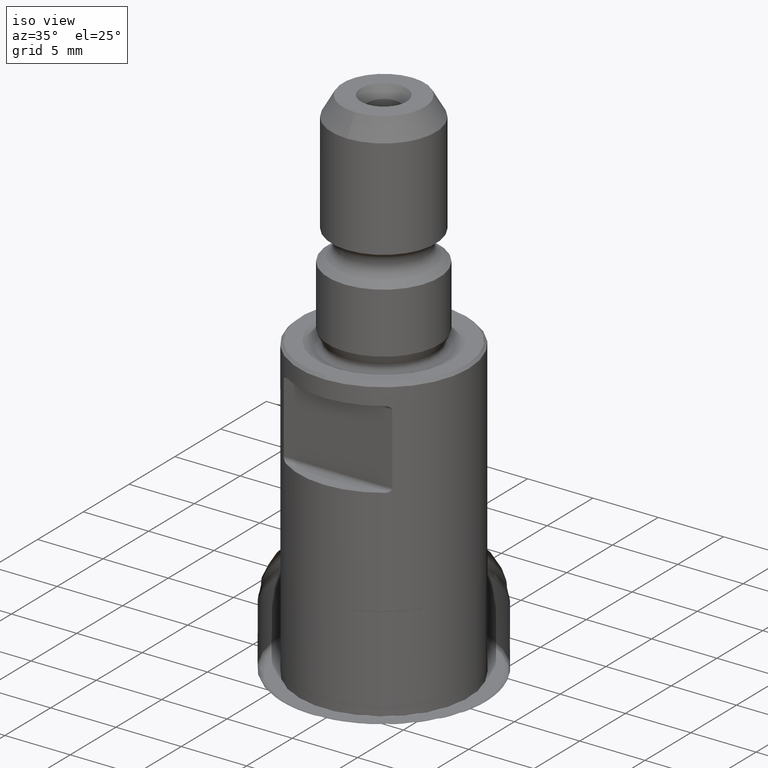
[diagram: clean part render]
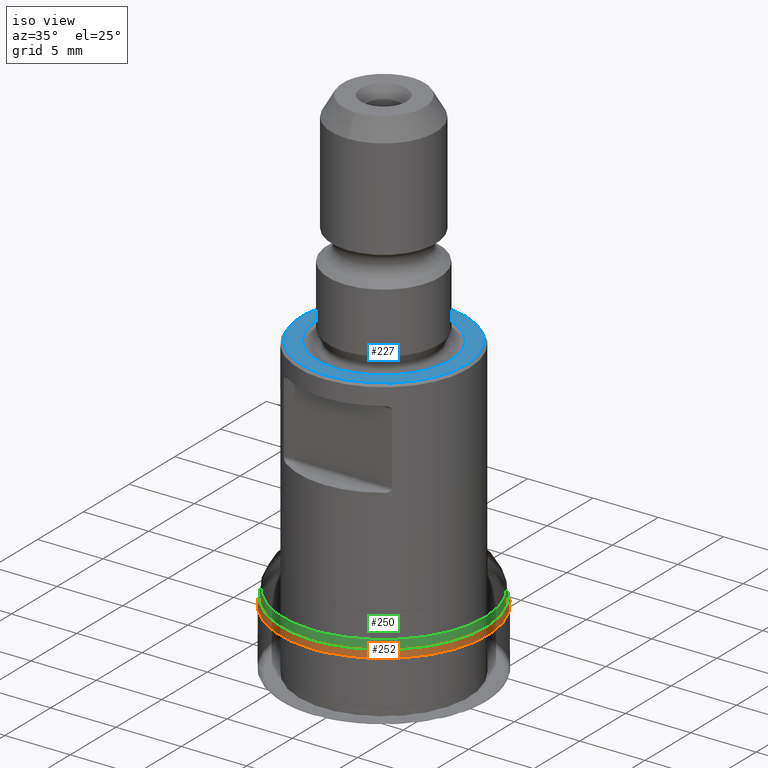
[diagram: same view with three faces highlighted in distinct colors, each labeled with its STEP entity id]
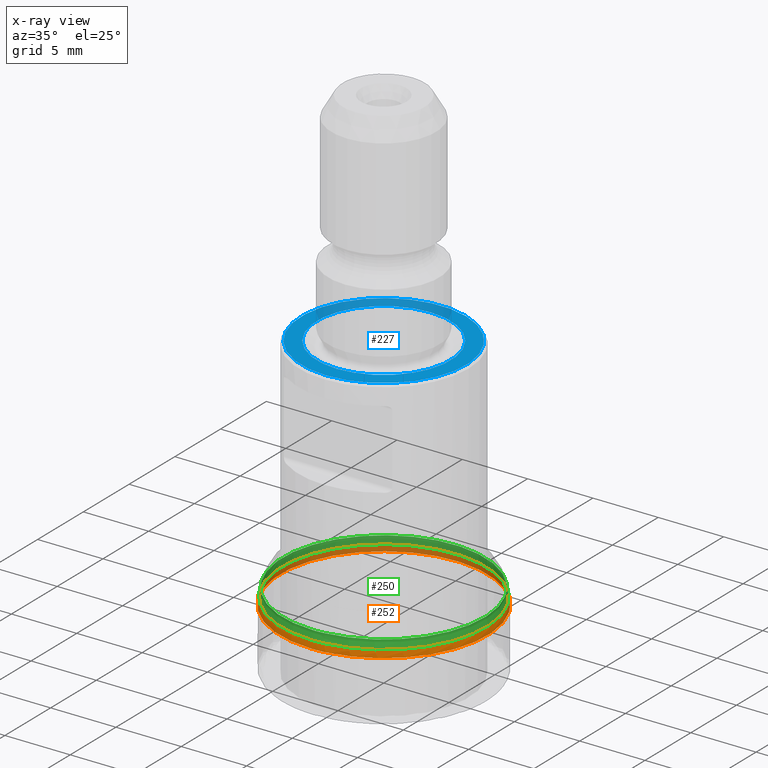
[diagram: x-ray of the same camera — body ghosted, the three highlighted faces saturated]
A machine part, iso view with three faces highlighted in distinct colors.
The next image is the same camera in x-ray (body ghosted, the three faces saturated) — at least one of them is partly hidden behind the body in this view.
Their STEP definitions:

[orange] entity #252 — the highlighted face is a SurfaceOfRevolution surface.
#115=SURFACE_OF_REVOLUTION('',#749,#136);
#136=AXIS1_PLACEMENT('',#1536,#963);
#252=ADVANCED_FACE('',(#323,#324),#115,.F.);
#323=FACE_BOUND('',#409,.T.);
#324=FACE_BOUND('',#410,.T.);
#409=EDGE_LOOP('',(#531));
#410=EDGE_LOOP('',(#532));
#531=ORIENTED_EDGE('',*,*,#660,.T.);
#532=ORIENTED_EDGE('',*,*,#661,.F.);
#599=VERTEX_POINT('',#1526);
#600=VERTEX_POINT('',#1530);
#660=EDGE_CURVE('',#599,#599,#701,.T.);
#661=EDGE_CURVE('',#600,#600,#702,.T.);
#701=CIRCLE('',#814,7.83769897186827);
#702=CIRCLE('',#815,7.9375);
#749=B_SPLINE_CURVE_WITH_KNOTS('',3,(#1531,#1532,#1533,#1534,#1535),
 .UNSPECIFIED.,.F.,.F.,(4,1,4),(0.,0.5,1.),.UNSPECIFIED.);
#814=AXIS2_PLACEMENT_3D('',#1525,#957,#958);
#815=AXIS2_PLACEMENT_3D('',#1529,#961,#962);
#957=DIRECTION('',(0.,1.17145536458252E-15,1.));
#958=DIRECTION('',(0.,-1.,1.21731890343297E-15));
#961=DIRECTION('',(0.,1.17145536458252E-15,1.));
#962=DIRECTION('',(0.,-1.,1.20201311721228E-15));
#963=DIRECTION('',(0.,1.17145536458252E-15,1.));
#1525=CARTESIAN_POINT('',(0.,6.11882400380711E-15,5.22326687708472));
#1526=CARTESIAN_POINT('',(0.,-7.83769897186827,5.22326687708473));
#1529=CARTESIAN_POINT('',(0.,5.51349076065964E-15,4.70653080548613));
#1530=CARTESIAN_POINT('',(0.,-7.9375,4.70653080548614));
#1531=CARTESIAN_POINT('',(7.93123913118178,-0.315197213882265,4.70653106286331));
#1532=CARTESIAN_POINT('',(7.93057608245871,-0.292889324297077,4.79057840416767));
#1533=CARTESIAN_POINT('',(7.9109288052974,-0.268301169903028,4.96884907366958));
#1534=CARTESIAN_POINT('',(7.86084055712466,-0.282002340077085,5.14228018316221));
#1535=CARTESIAN_POINT('',(7.83208793430537,-0.296519414091544,5.22326687708472));
#1536=CARTESIAN_POINT('',(0.,0.,0.));

[blue] entity #227 — the highlighted planar face has unit normal (-0, -0, -1).
#227=ADVANCED_FACE('',(#293,#294),#267,.F.);
#267=PLANE('',#781);
#293=FACE_BOUND('',#369,.T.);
#294=FACE_BOUND('',#370,.T.);
#369=EDGE_LOOP('',(#455));
#370=EDGE_LOOP('',(#456));
#455=ORIENTED_EDGE('',*,*,#624,.T.);
#456=ORIENTED_EDGE('',*,*,#623,.F.);
#569=VERTEX_POINT('',#1255);
#570=VERTEX_POINT('',#1258);
#623=EDGE_CURVE('',#569,#569,#684,.T.);
#624=EDGE_CURVE('',#570,#570,#685,.T.);
#684=CIRCLE('',#778,5.11627222808008);
#685=CIRCLE('',#780,6.30000000000001);
#778=AXIS2_PLACEMENT_3D('',#1254,#866,#867);
#780=AXIS2_PLACEMENT_3D('',#1257,#870,#871);
#781=AXIS2_PLACEMENT_3D('',#1259,#872,#873);
#866=DIRECTION('',(1.17145536458252E-15,1.17145536458252E-15,1.));
#867=DIRECTION('',(0.,1.,-1.3562401675626E-15));
#870=DIRECTION('',(1.17145536458252E-15,1.17145536458252E-15,1.));
#871=DIRECTION('',(0.,-1.,1.10141173077892E-15));
#872=DIRECTION('',(-1.17145536458252E-15,-1.17145536458252E-15,-1.));
#873=DIRECTION('',(0.,-1.,1.17267306976032E-15));
#1254=CARTESIAN_POINT('',(2.69282444656585E-14,2.69282444656585E-14,22.987));
#1255=CARTESIAN_POINT('',(2.69282444656585E-14,5.11627222808011,22.987));
#1257=CARTESIAN_POINT('',(2.69282444656585E-14,2.69282444656585E-14,22.987));
#1258=CARTESIAN_POINT('',(2.69282444656585E-14,-6.29999999999998,22.987));
#1259=CARTESIAN_POINT('',(6.50000000000003,2.69282444656585E-14,22.987));

[green] entity #250 — the highlighted face is a SurfaceOfRevolution surface.
#113=SURFACE_OF_REVOLUTION('',#748,#134);
#134=AXIS1_PLACEMENT('',#1524,#956);
#250=ADVANCED_FACE('',(#319,#320),#113,.F.);
#319=FACE_BOUND('',#405,.T.);
#320=FACE_BOUND('',#406,.T.);
#405=EDGE_LOOP('',(#527));
#406=EDGE_LOOP('',(#528));
#527=ORIENTED_EDGE('',*,*,#658,.T.);
#528=ORIENTED_EDGE('',*,*,#659,.F.);
#597=VERTEX_POINT('',#1508);
#598=VERTEX_POINT('',#1518);
#658=EDGE_CURVE('',#597,#597,#699,.T.);
#659=EDGE_CURVE('',#598,#598,#700,.T.);
#699=CIRCLE('',#812,7.73269945765946);
#700=CIRCLE('',#813,7.82431994396198);
#748=B_SPLINE_CURVE_WITH_KNOTS('',3,(#1519,#1520,#1521,#1522,#1523),
 .UNSPECIFIED.,.F.,.F.,(4,1,4),(0.,0.5,1.),.UNSPECIFIED.);
#812=AXIS2_PLACEMENT_3D('',#1507,#951,#952);
#813=AXIS2_PLACEMENT_3D('',#1517,#954,#955);
#951=DIRECTION('',(0.,1.17145536458252E-15,1.));
#952=DIRECTION('',(0.,-1.,1.12168039471553E-15));
#954=DIRECTION('',(0.,1.17145536458252E-15,1.));
#955=DIRECTION('',(0.,-1.,1.21940043175704E-15));
#956=DIRECTION('',(0.,1.17145536458252E-15,1.));
#1507=CARTESIAN_POINT('',(0.,6.92472286997795E-15,5.91121358895799));
#1508=CARTESIAN_POINT('',(0.,-7.73269945765945,5.911213588958));
#1517=CARTESIAN_POINT('',(0.,6.1636067574113E-15,5.26149518262512));
#1518=CARTESIAN_POINT('',(0.,-7.82431994396197,5.26149518262513));
#1519=CARTESIAN_POINT('',(7.81844276746932,-0.30320830678146,5.26149518262267));
#1520=CARTESIAN_POINT('',(7.78193663517463,-0.321109647641293,5.36377688166717));
#1521=CARTESIAN_POINT('',(7.72894995657415,-0.354960681223821,5.57834868866078));
#1522=CARTESIAN_POINT('',(7.71798864239909,-0.382703249789872,5.80094000958534));
#1523=CARTESIAN_POINT('',(7.72261597025611,-0.394770158994076,5.91121358895799));
#1524=CARTESIAN_POINT('',(0.,0.,0.));